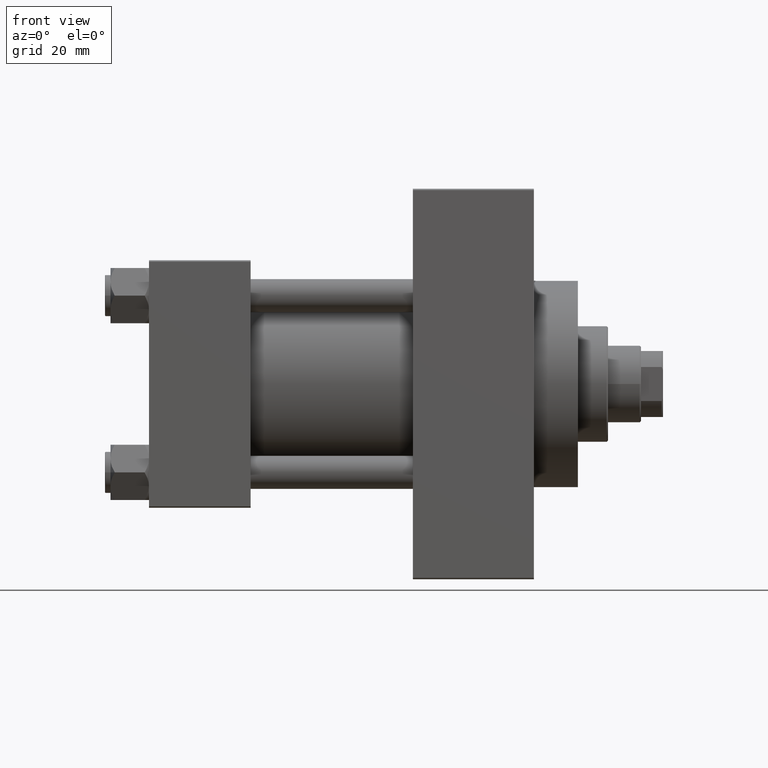
[diagram: clean part render]
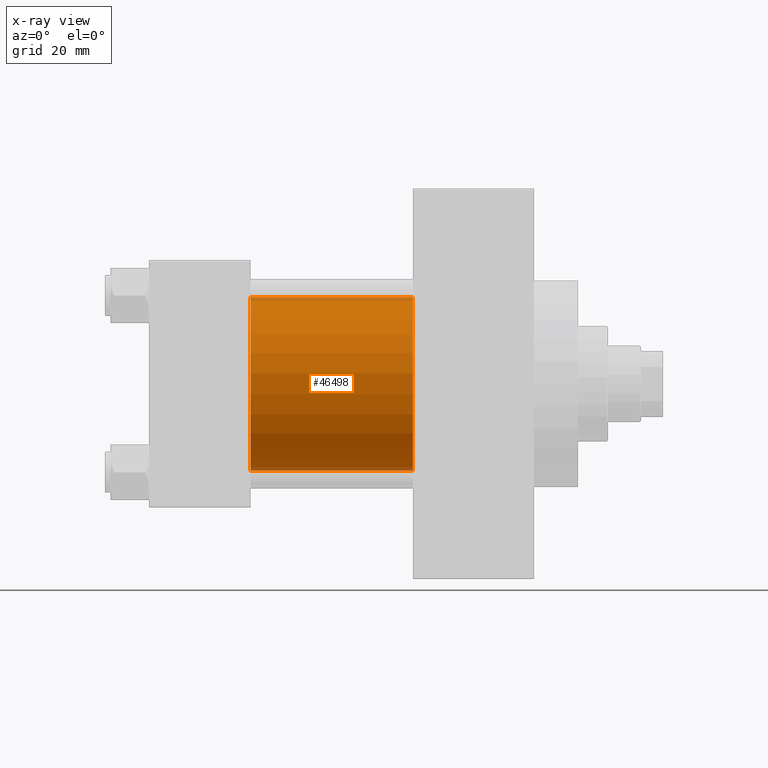
[diagram: x-ray — body ghosted, one internal face saturated and labeled with its STEP entity id]
A machine part, front view, then the same camera in x-ray: the body is ghosted and one INTERNAL B-rep face — a face not visible from any outside direction — is saturated and labeled: STEP entity #46498.
In plain terms, the highlighted cylindrical surface (partial cylindrical patch) has radius 31.5 mm, axis along (-1, -0, -0).
Its self-contained STEP definition (entity closure, byte-faithful):
#317 = DIRECTION ( 'NONE',  ( 1.000000000000000000, 0.000000000000000000, 0.000000000000000000 ) ) ;
#934 = ORIENTED_EDGE ( 'NONE', *, *, #37562, .F. ) ;
#2400 = CYLINDRICAL_SURFACE ( 'NONE', #30476, 31.50000000000000000 ) ;
#2824 = EDGE_CURVE ( 'NONE', #5159, #30427, #27275, .T. ) ;
#3090 = ORIENTED_EDGE ( 'NONE', *, *, #26181, .T. ) ;
#3821 = DIRECTION ( 'NONE',  ( 0.000000000000000000, 0.000000000000000000, 1.000000000000000000 ) ) ;
#5159 = VERTEX_POINT ( 'NONE', #38373 ) ;
#5622 = VECTOR ( 'NONE', #29856, 1000.000000000000000 ) ;
#6614 = DIRECTION ( 'NONE',  ( -1.000000000000000000, -0.000000000000000000, -0.000000000000000000 ) ) ;
#7628 = ORIENTED_EDGE ( 'NONE', *, *, #24415, .F. ) ;
#7781 = DIRECTION ( 'NONE',  ( 0.000000000000000000, 0.000000000000000000, -1.000000000000000000 ) ) ;
#10630 = CARTESIAN_POINT ( 'NONE',  ( 96.00000000000000000, 1.255552203348951850E-15, -31.50000000000000000 ) ) ;
#11569 = AXIS2_PLACEMENT_3D ( 'NONE', #30197, #47582, #26003 ) ;
#13800 = CARTESIAN_POINT ( 'NONE',  ( 96.00000000000000000, -2.602085213965210642E-15, 0.000000000000000000 ) ) ;
#14745 = CARTESIAN_POINT ( 'NONE',  ( 96.00000000000000000, -2.602085213965210642E-15, 31.50000000000000000 ) ) ;
#17686 = DIRECTION ( 'NONE',  ( -1.000000000000000000, -0.000000000000000000, -0.000000000000000000 ) ) ;
#21419 = CARTESIAN_POINT ( 'NONE',  ( 96.00000000000000000, 1.255552203348951850E-15, -31.50000000000000000 ) ) ;
#21840 = CARTESIAN_POINT ( 'NONE',  ( 37.00000000000000000, 1.255552203348951850E-15, -31.50000000000000000 ) ) ;
#24415 = EDGE_CURVE ( 'NONE', #30807, #42026, #26600, .T. ) ;
#25133 = LINE ( 'NONE', #21419, #35397 ) ;
#26003 = DIRECTION ( 'NONE',  ( 0.000000000000000000, 0.000000000000000000, -1.000000000000000000 ) ) ;
#26181 = EDGE_CURVE ( 'NONE', #30427, #42026, #25133, .T. ) ;
#26600 = CIRCLE ( 'NONE', #11569, 31.50000000000000000 ) ;
#27275 = CIRCLE ( 'NONE', #31241, 31.50000000000000000 ) ;
#29856 = DIRECTION ( 'NONE',  ( -1.000000000000000000, -0.000000000000000000, -0.000000000000000000 ) ) ;
#30197 = CARTESIAN_POINT ( 'NONE',  ( 37.00000000000000000, -2.602085213965210642E-15, 0.000000000000000000 ) ) ;
#30427 = VERTEX_POINT ( 'NONE', #10630 ) ;
#30476 = AXIS2_PLACEMENT_3D ( 'NONE', #13800, #6614, #3821 ) ;
#30807 = VERTEX_POINT ( 'NONE', #35247 ) ;
#31241 = AXIS2_PLACEMENT_3D ( 'NONE', #34247, #317, #7781 ) ;
#33798 = LINE ( 'NONE', #14745, #5622 ) ;
#34247 = CARTESIAN_POINT ( 'NONE',  ( 96.00000000000000000, -2.602085213965210642E-15, 0.000000000000000000 ) ) ;
#35247 = CARTESIAN_POINT ( 'NONE',  ( 37.00000000000000000, -2.602085213965210642E-15, 31.50000000000000000 ) ) ;
#35397 = VECTOR ( 'NONE', #17686, 1000.000000000000000 ) ;
#36086 = FACE_OUTER_BOUND ( 'NONE', #46945, .T. ) ;
#37562 = EDGE_CURVE ( 'NONE', #5159, #30807, #33798, .T. ) ;
#38373 = CARTESIAN_POINT ( 'NONE',  ( 96.00000000000000000, -2.602085213965210642E-15, 31.50000000000000000 ) ) ;
#42026 = VERTEX_POINT ( 'NONE', #21840 ) ;
#46498 = ADVANCED_FACE ( 'NONE', ( #36086 ), #2400, .F. ) ;
#46945 = EDGE_LOOP ( 'NONE', ( #47563, #3090, #7628, #934 ) ) ;
#47563 = ORIENTED_EDGE ( 'NONE', *, *, #2824, .T. ) ;
#47582 = DIRECTION ( 'NONE',  ( 1.000000000000000000, 0.000000000000000000, 0.000000000000000000 ) ) ;